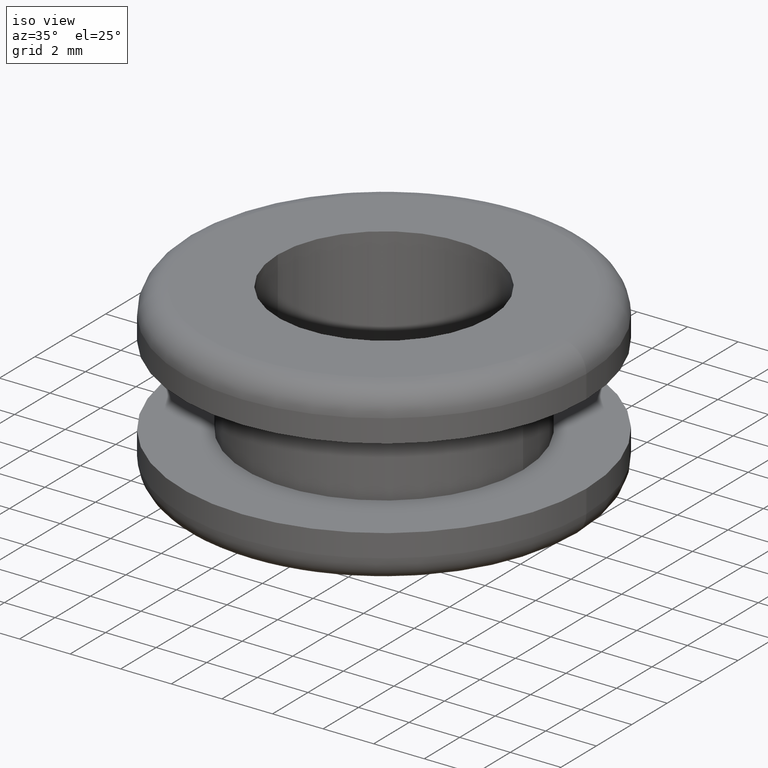
[diagram: clean part render]
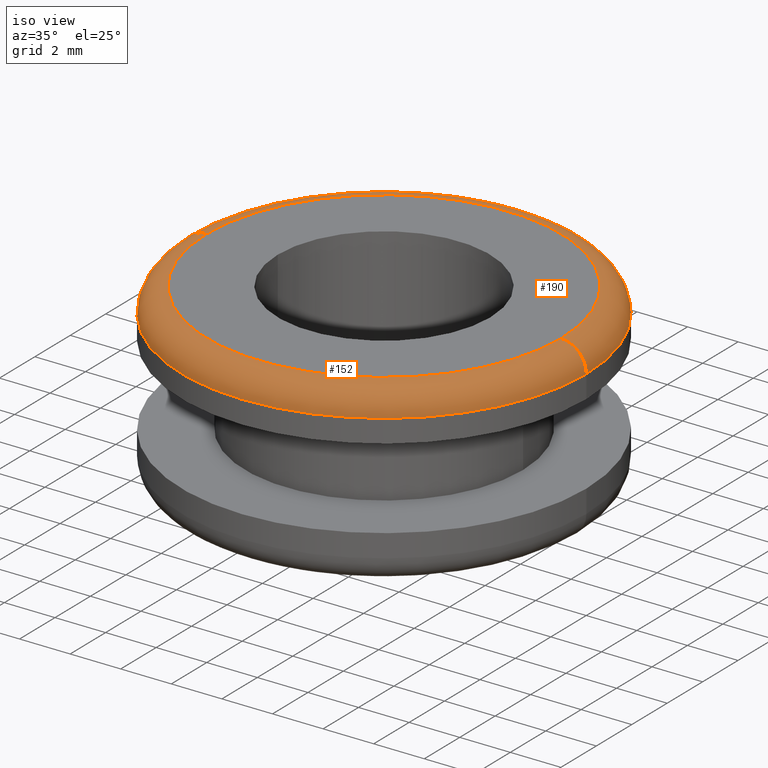
[diagram: same view with one multi-face feature highlighted, each face labeled with its STEP entity id]
A machine part, iso view. The highlighted faces form ONE feature: a constant-radius fillet chain: 2 tangent blend faces with common blend radius 1 mm. The faces share edges in the B-rep.
Their STEP definitions:
[1] entity #152 (Torus):
#6 = CIRCLE ( 'NONE', #473, 6.999999999875009300 ) ;
#20 = TOROIDAL_SURFACE ( 'NONE', #373, 6.999999999875010200, 1.000000000000000000 ) ;
#27 = CARTESIAN_POINT ( 'NONE',  ( 92.20493729670468500, 0.0000000000000000000, 146.3726952467922300 ) ) ;
#34 = CIRCLE ( 'NONE', #56, 1.000000000000000900 ) ;
#56 = AXIS2_PLACEMENT_3D ( 'NONE', #144, #309, #444 ) ;
#60 = DIRECTION ( 'NONE',  ( -1.000000000000000000, 0.0000000000000000000, 0.0000000000000000000 ) ) ;
#61 = DIRECTION ( 'NONE',  ( 0.0000000000000000000, 0.0000000000000000000, -1.000000000000000000 ) ) ;
#65 = EDGE_CURVE ( 'NONE', #328, #130, #246, .T. ) ;
#70 = ORIENTED_EDGE ( 'NONE', *, *, #65, .T. ) ;
#71 = AXIS2_PLACEMENT_3D ( 'NONE', #27, #426, #465 ) ;
#86 = CARTESIAN_POINT ( 'NONE',  ( 99.20493729657970100, 0.0000000000000000000, 146.3726952467922300 ) ) ;
#91 = ORIENTED_EDGE ( 'NONE', *, *, #216, .F. ) ;
#130 = VERTEX_POINT ( 'NONE', #210 ) ;
#140 = CIRCLE ( 'NONE', #359, 7.999999999875010200 ) ;
#144 = CARTESIAN_POINT ( 'NONE',  ( 106.2049372964547000, 8.572527593878403600E-016, 146.3726952467922300 ) ) ;
#152 = ADVANCED_FACE ( 'NONE', ( #273 ), #20, .T. ) ;
#173 = CARTESIAN_POINT ( 'NONE',  ( 99.20493729657970100, 0.0000000000000000000, 146.3726952467922300 ) ) ;
#185 = EDGE_LOOP ( 'NONE', ( #91, #390, #70, #453 ) ) ;
#210 = CARTESIAN_POINT ( 'NONE',  ( 91.20493729670468500, 0.0000000000000000000, 146.3726952467922300 ) ) ;
#216 = EDGE_CURVE ( 'NONE', #352, #470, #34, .T. ) ;
#218 = DIRECTION ( 'NONE',  ( 0.0000000000000000000, 0.0000000000000000000, -1.000000000000000000 ) ) ;
#231 = CARTESIAN_POINT ( 'NONE',  ( 107.2049372964547000, 9.797174393025757100E-016, 146.3726952467922300 ) ) ;
#234 = DIRECTION ( 'NONE',  ( -1.000000000000000000, 0.0000000000000000000, 0.0000000000000000000 ) ) ;
#246 = CIRCLE ( 'NONE', #71, 1.000000000000000900 ) ;
#270 = CARTESIAN_POINT ( 'NONE',  ( 106.2049372964547000, 9.184850993452081300E-016, 147.3726952467922000 ) ) ;
#272 = CARTESIAN_POINT ( 'NONE',  ( 92.20493729670468500, 0.0000000000000000000, 147.3726952467922000 ) ) ;
#273 = FACE_OUTER_BOUND ( 'NONE', #185, .T. ) ;
#309 = DIRECTION ( 'NONE',  ( -1.224646799147353200E-016, 1.000000000000000000, 0.0000000000000000000 ) ) ;
#328 = VERTEX_POINT ( 'NONE', #272 ) ;
#342 = DIRECTION ( 'NONE',  ( 0.0000000000000000000, 0.0000000000000000000, -1.000000000000000000 ) ) ;
#352 = VERTEX_POINT ( 'NONE', #270 ) ;
#356 = EDGE_CURVE ( 'NONE', #470, #130, #140, .T. ) ;
#359 = AXIS2_PLACEMENT_3D ( 'NONE', #86, #342, #234 ) ;
#373 = AXIS2_PLACEMENT_3D ( 'NONE', #173, #61, #60 ) ;
#379 = CARTESIAN_POINT ( 'NONE',  ( 99.20493729657970100, 0.0000000000000000000, 147.3726952467922000 ) ) ;
#385 = EDGE_CURVE ( 'NONE', #352, #328, #6, .T. ) ;
#390 = ORIENTED_EDGE ( 'NONE', *, *, #385, .T. ) ;
#415 = DIRECTION ( 'NONE',  ( -1.000000000000000000, 0.0000000000000000000, 0.0000000000000000000 ) ) ;
#426 = DIRECTION ( 'NONE',  ( -0.0000000000000000000, -1.000000000000000000, -0.0000000000000000000 ) ) ;
#444 = DIRECTION ( 'NONE',  ( -1.000000000000000000, -1.224646799147352500E-016, 0.0000000000000000000 ) ) ;
#453 = ORIENTED_EDGE ( 'NONE', *, *, #356, .F. ) ;
#465 = DIRECTION ( 'NONE',  ( 0.0000000000000000000, 0.0000000000000000000, -1.000000000000000000 ) ) ;
#470 = VERTEX_POINT ( 'NONE', #231 ) ;
#473 = AXIS2_PLACEMENT_3D ( 'NONE', #379, #218, #415 ) ;
[2] entity #190 (Torus):
#27 = CARTESIAN_POINT ( 'NONE',  ( 92.20493729670468500, 0.0000000000000000000, 146.3726952467922300 ) ) ;
#29 = AXIS2_PLACEMENT_3D ( 'NONE', #441, #438, #145 ) ;
#34 = CIRCLE ( 'NONE', #56, 1.000000000000000900 ) ;
#44 = TOROIDAL_SURFACE ( 'NONE', #457, 6.999999999875010200, 1.000000000000000000 ) ;
#56 = AXIS2_PLACEMENT_3D ( 'NONE', #144, #309, #444 ) ;
#65 = EDGE_CURVE ( 'NONE', #328, #130, #246, .T. ) ;
#71 = AXIS2_PLACEMENT_3D ( 'NONE', #27, #426, #465 ) ;
#93 = ORIENTED_EDGE ( 'NONE', *, *, #65, .F. ) ;
#115 = CARTESIAN_POINT ( 'NONE',  ( 99.20493729657970100, 0.0000000000000000000, 146.3726952467922300 ) ) ;
#129 = CARTESIAN_POINT ( 'NONE',  ( 99.20493729657970100, 0.0000000000000000000, 146.3726952467922300 ) ) ;
#130 = VERTEX_POINT ( 'NONE', #210 ) ;
#144 = CARTESIAN_POINT ( 'NONE',  ( 106.2049372964547000, 8.572527593878403600E-016, 146.3726952467922300 ) ) ;
#145 = DIRECTION ( 'NONE',  ( -1.000000000000000000, 0.0000000000000000000, 0.0000000000000000000 ) ) ;
#151 = CIRCLE ( 'NONE', #29, 6.999999999875009300 ) ;
#181 = DIRECTION ( 'NONE',  ( 0.0000000000000000000, 0.0000000000000000000, -1.000000000000000000 ) ) ;
#190 = ADVANCED_FACE ( 'NONE', ( #319 ), #44, .T. ) ;
#210 = CARTESIAN_POINT ( 'NONE',  ( 91.20493729670468500, 0.0000000000000000000, 146.3726952467922300 ) ) ;
#215 = EDGE_CURVE ( 'NONE', #328, #352, #151, .T. ) ;
#216 = EDGE_CURVE ( 'NONE', #352, #470, #34, .T. ) ;
#231 = CARTESIAN_POINT ( 'NONE',  ( 107.2049372964547000, 9.797174393025757100E-016, 146.3726952467922300 ) ) ;
#244 = ORIENTED_EDGE ( 'NONE', *, *, #216, .T. ) ;
#246 = CIRCLE ( 'NONE', #71, 1.000000000000000900 ) ;
#267 = ORIENTED_EDGE ( 'NONE', *, *, #333, .F. ) ;
#270 = CARTESIAN_POINT ( 'NONE',  ( 106.2049372964547000, 9.184850993452081300E-016, 147.3726952467922000 ) ) ;
#272 = CARTESIAN_POINT ( 'NONE',  ( 92.20493729670468500, 0.0000000000000000000, 147.3726952467922000 ) ) ;
#277 = DIRECTION ( 'NONE',  ( -1.000000000000000000, 0.0000000000000000000, 0.0000000000000000000 ) ) ;
#309 = DIRECTION ( 'NONE',  ( -1.224646799147353200E-016, 1.000000000000000000, 0.0000000000000000000 ) ) ;
#315 = AXIS2_PLACEMENT_3D ( 'NONE', #115, #436, #380 ) ;
#319 = FACE_OUTER_BOUND ( 'NONE', #477, .T. ) ;
#328 = VERTEX_POINT ( 'NONE', #272 ) ;
#333 = EDGE_CURVE ( 'NONE', #130, #470, #439, .T. ) ;
#352 = VERTEX_POINT ( 'NONE', #270 ) ;
#370 = ORIENTED_EDGE ( 'NONE', *, *, #215, .T. ) ;
#380 = DIRECTION ( 'NONE',  ( -1.000000000000000000, 0.0000000000000000000, 0.0000000000000000000 ) ) ;
#426 = DIRECTION ( 'NONE',  ( -0.0000000000000000000, -1.000000000000000000, -0.0000000000000000000 ) ) ;
#436 = DIRECTION ( 'NONE',  ( 0.0000000000000000000, 0.0000000000000000000, -1.000000000000000000 ) ) ;
#438 = DIRECTION ( 'NONE',  ( 0.0000000000000000000, 0.0000000000000000000, -1.000000000000000000 ) ) ;
#439 = CIRCLE ( 'NONE', #315, 7.999999999875010200 ) ;
#441 = CARTESIAN_POINT ( 'NONE',  ( 99.20493729657970100, 0.0000000000000000000, 147.3726952467922000 ) ) ;
#444 = DIRECTION ( 'NONE',  ( -1.000000000000000000, -1.224646799147352500E-016, 0.0000000000000000000 ) ) ;
#457 = AXIS2_PLACEMENT_3D ( 'NONE', #129, #181, #277 ) ;
#465 = DIRECTION ( 'NONE',  ( 0.0000000000000000000, 0.0000000000000000000, -1.000000000000000000 ) ) ;
#470 = VERTEX_POINT ( 'NONE', #231 ) ;
#477 = EDGE_LOOP ( 'NONE', ( #370, #244, #267, #93 ) ) ;